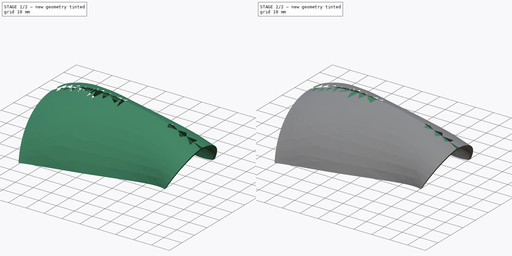
[diagram: build sequence overview — one tinted view per stage of 2, left to right]
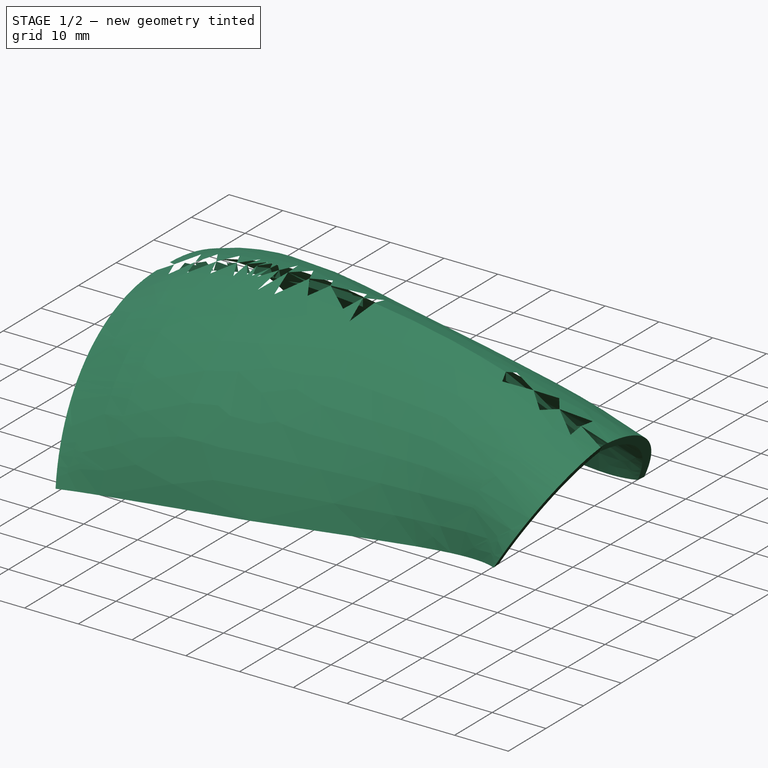
[diagram: stage 1 of 2 — iso view after this stage's code; geometry added in this stage tinted green]
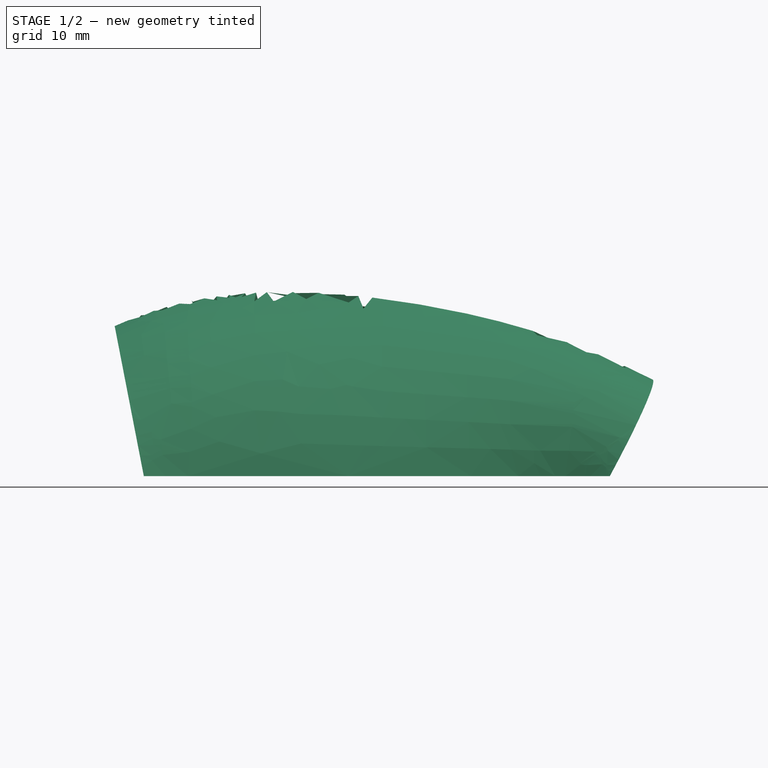
[diagram: stage 1 of 2 — front view after this stage's code; geometry added in this stage tinted green]
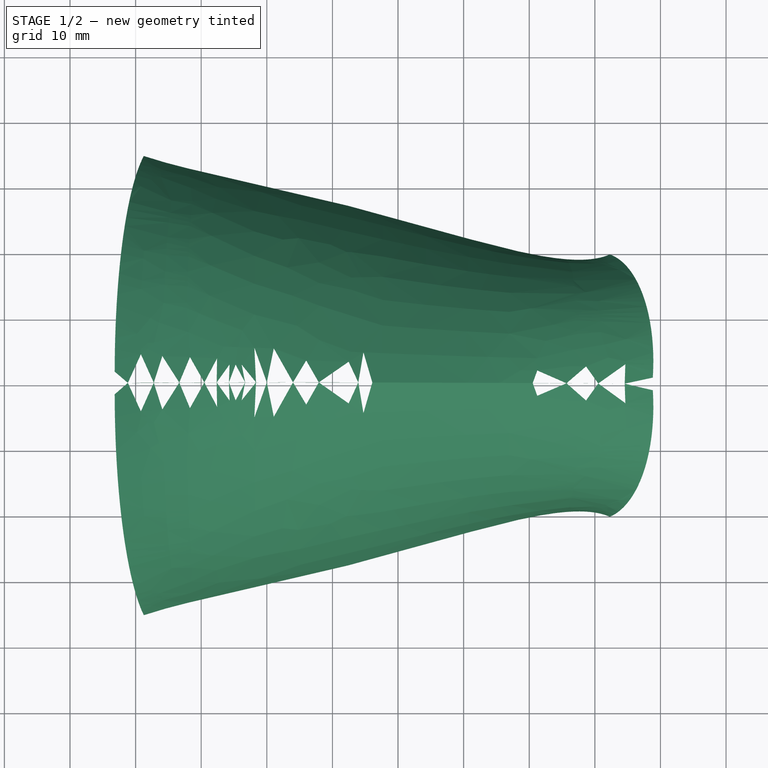
[diagram: stage 1 of 2 — top view after this stage's code; geometry added in this stage tinted green]
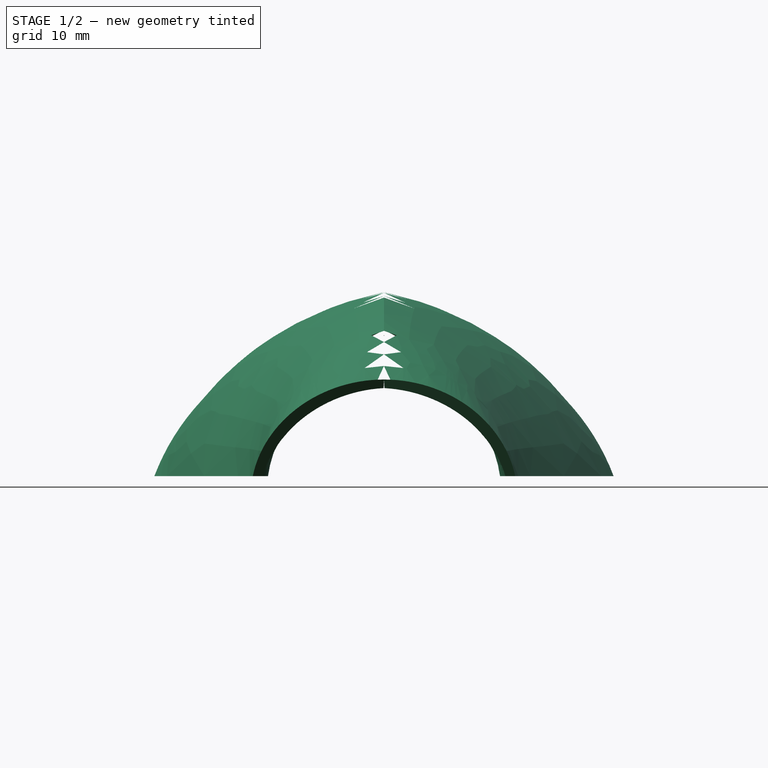
[diagram: stage 1 of 2 — right view after this stage's code; geometry added in this stage tinted green]
FCSTD DOCUMENT  (FreeCAD 0.21RUnknown)
Label: part28
License: All rights reserved
LicenseURL: http://en.wikipedia.org/wiki/All_rights_reserved
objects: Sketcher::SketchObject×20, Part::Loft×1, Part::Mirroring×1, PartDesign::AdditiveLoft×1, PartDesign::Mirrored×1, PartDesign::Body×1
note: 26 computed .brp shape members not serialized (recipe doc carries the construction recipe); baked Part::Feature solids carry a one-line shape summary decoded from their .brp

FEATURE [Sketcher::SketchObject] Sketch012  label="PlacementSketch001"
  FullyConstrained = false
  sketch-geometry (3):
    g0: GeomPoint X=-10 Y=0 Z=0
    g1: GeomPoint X=16.0819 Y=0 Z=0
    g2: GeomPoint X=40.5315 Y=0 Z=0
  constraints (4):
    c: PointOnObject(g0,g-1)
    c: PointOnObject(g1,g-1)
    c: PointOnObject(g2,g-1)
    c: DistanceX(g0,g-1) = 10
FEATURE [Sketcher::SketchObject] Sketch010  label="FootPrint001"
  ExternalGeometry = -> [Sketch012]
  FullyConstrained = false
  sketch-geometry (3):
    g0: LineSegment StartX=-18.7484 StartY=35 StartZ=0 EndX=42.2815 EndY=20 EndZ=0
    g1: GeomPoint X=0 Y=30.392 Z=0
    g2: GeomPoint X=16.0819 Y=26.4394 Z=0
  constraints (6):
    c: DistanceY(g-1,g0) = 20
    c: DistanceY(g-1,g0) = 35
    c: PointOnObject(g1,g0)
    c: PointOnObject(g2,g0)
    c: Vertical(g2,g-4)
    c: Vertical(g1,g-1)
FEATURE [Sketcher::SketchObject] Sketch011
  ExternalGeometry = -> [Sketch012,Sketch010]
  FullyConstrained = false
  sketch-geometry (1):
    g0: LineSegment StartX=-18.7484 StartY=-25.3388 StartZ=0 EndX=-18.7484 EndY=35 EndZ=0
  constraints (2):
    c: Vertical(g0)
    c: Coincident(g0,g-4)
FEATURE [Sketcher::SketchObject] Sketch013  label="TopCurve001"
  ExternalGeometry = -> [Sketch012]
  FullyConstrained = false
  Placement = pos=(0,0,0) rot=(1,0,0;1.5708rad)
  sketch-geometry (25):
    g0: Circle CenterX=-23.1839 CenterY=22.8352 CenterZ=0 NormalX=0 NormalY=0 NormalZ=1 AngleXU=0 Radius=1
    g1: Circle CenterX=-13.1477 CenterY=28.5719 CenterZ=0 NormalX=0 NormalY=0 NormalZ=1 AngleXU=0 Radius=1
    g2: Circle CenterX=0 CenterY=28.0417 CenterZ=0 NormalX=0 NormalY=0 NormalZ=1 AngleXU=0 Radius=1
    g3: BSplineCurve PolesCount=3 KnotsCount=2 Degree=2 IsPeriodic=0
    g4: GeomPoint X=-23.1839 Y=22.8352 Z=0
    g5: GeomPoint X=0 Y=28.0417 Z=0
    g6: Circle CenterX=0 CenterY=28.0417 CenterZ=0 NormalX=0 NormalY=0 NormalZ=1 AngleXU=0 Radius=1
    g7: Circle CenterX=8.70534 CenterY=27.9808 CenterZ=0 NormalX=0 NormalY=0 NormalZ=1 AngleXU=0 Radius=1
    g8: Circle CenterX=16.0819 CenterY=27.2117 CenterZ=0 NormalX=0 NormalY=0 NormalZ=1 AngleXU=0 Radius=1
    g9: BSplineCurve PolesCount=3 KnotsCount=2 Degree=2 IsPeriodic=0
    g10: GeomPoint X=0 Y=28.0417 Z=0
    g11: GeomPoint X=16.0819 Y=27.2117 Z=0
    g12: Circle CenterX=16.0819 CenterY=27.2117 CenterZ=0 NormalX=0 NormalY=0 NormalZ=1 AngleXU=0 Radius=1
    g13: Circle CenterX=29.3371 CenterY=25.4106 CenterZ=0 NormalX=0 NormalY=0 NormalZ=1 AngleXU=0 Radius=1
    g14: Circle CenterX=40.5315 CenterY=22.1414 CenterZ=0 NormalX=0 NormalY=0 NormalZ=1 AngleXU=0 Radius=1
    g15: BSplineCurve PolesCount=3 KnotsCount=2 Degree=2 IsPeriodic=0
    g16: GeomPoint X=16.0819 Y=27.2117 Z=0
    g17: GeomPoint X=40.5315 Y=22.1414 Z=0
    g18: Circle CenterX=40.5315 CenterY=22.1414 CenterZ=0 NormalX=0 NormalY=0 NormalZ=1 AngleXU=0 Radius=1
    g19: Circle CenterX=50.5754 CenterY=18.7571 CenterZ=0 NormalX=0 NormalY=0 NormalZ=1 AngleXU=0 Radius=1
    g20: Circle CenterX=58.7627 CenterY=14.7211 CenterZ=0 NormalX=0 NormalY=0 NormalZ=1 AngleXU=0 Radius=1
    g21: BSplineCurve PolesCount=3 KnotsCount=2 Degree=2 IsPeriodic=0
    g22: GeomPoint X=40.5315 Y=22.1414 Z=0
    g23: GeomPoint X=58.7627 Y=14.7211 Z=0
    g24: LineSegment StartX=-10 StartY=0 StartZ=0 EndX=-23.1839 EndY=22.8352 EndZ=0
  constraints (41):
    c: Weight(g0) = 1
    c: Equal(g0,g1)
    c: Equal(g0,g2)
    c: InternalAlignment(g0,g3)
    c: InternalAlignment(g1,g3)
    c: InternalAlignment(g2,g3)
    c: InternalAlignment(g4,g3)
    c: InternalAlignment(g5,g3)
    c: Vertical(g2,g-1)
    c: Weight(g6) = 1
    c: Coincident(g9,g2)
    c: Equal(g6,g7)
    c: Equal(g6,g8)
    c: InternalAlignment(g6,g9)
    c: InternalAlignment(g7,g9)
    c: InternalAlignment(g8,g9)
    c: InternalAlignment(g10,g9)
    c: InternalAlignment(g11,g9)
    c: Vertical(g8,g-4)
    c: Weight(g12) = 1
    c: Equal(g12,g13)
    c: Equal(g12,g14)
    c: InternalAlignment(g12,g15)
    c: InternalAlignment(g13,g15)
    c: InternalAlignment(g14,g15)
    c: InternalAlignment(g16,g15)
    c: InternalAlignment(g17,g15)
    c: Vertical(g14,g-5)
    c: Weight(g18) = 1
    c: Equal(g18,g19)
    c: Equal(g18,g20)
    c: InternalAlignment(g18,g21)
    c: InternalAlignment(g19,g21)
    c: InternalAlignment(g20,g21)
    c: InternalAlignment(g22,g21)
    c: InternalAlignment(g23,g21)
    c: Coincident(g24,g-3)
    c: Coincident(g24,g0)
    c: Angle(g-1,g24) = 2.0944
    c: Coincident(g9,g15)
    c: Coincident(g15,g21)
FEATURE [Sketcher::SketchObject] Sketch014
  ExternalGeometry = -> [Sketch012,Sketch010]
  FullyConstrained = true
  Placement = pos=(10,0,0) rot=(0,0,1;0rad)
  sketch-geometry (1):
    g0: LineSegment StartX=42.2815 StartY=20 StartZ=0 EndX=38.7816 EndY=-20 EndZ=0
  constraints (2):
    c: Symmetric(g0,g0,g-3)
    c: Coincident(g-4,g0)
FEATURE [Sketcher::SketchObject] Sketch016  label="Profile006"
  ExternalGeometry = -> [Sketch010,Sketch013]
  FullyConstrained = false
  MapMode = 1
  Placement = pos=(40.5315,0,0) rot=(0.57735,-0.57735,-0.57735;2.0944rad)
  Support = -> [Sketch012]
  sketch-geometry (4):
    g0: ArcOfCircle CenterX=5.10984 CenterY=-2.57774 CenterZ=0 NormalX=0 NormalY=0 NormalZ=1 AngleXU=0 Radius=25.2418 StartAngle=1.77464 EndAngle=3.03929
    g1: ArcOfCircle CenterX=6.46024 CenterY=-3.75966 CenterZ=0 NormalX=0 NormalY=0 NormalZ=1 AngleXU=0 Radius=25.2418 StartAngle=1.82961 EndAngle=2.99209
    g2: LineSegment StartX=-20 StartY=-2.2e-15 StartZ=0 EndX=-18.5 EndY=-4e-15 EndZ=0
    g3: LineSegment StartX=5.3e-15 StartY=22.1414 StartZ=0 EndX=-9e-16 EndY=20.6414 EndZ=0
  constraints (11):
    c: Coincident(g0,g-4)
    c: PointOnObject(g1,g-1)
    c: PointOnObject(g1,g-2)
    c: Coincident(g2,g0)
    c: Coincident(g2,g1)
    c: Coincident(g3,g0)
    c: Coincident(g3,g1)
    c: DistanceX(g2,g2) = 1.5
    c: Equal(g1,g0)
    c: Equal(g2,g3)
    c: Coincident(g-3,g0)
FEATURE [Sketcher::SketchObject] Sketch015  label="Profile005"
  ExternalGeometry = -> [Sketch013,Sketch016,Sketch014]
  FullyConstrained = false
  MapMode = 13
  Placement = pos=(53.2753,-9e-16,4.90703) rot=(0.421088,-0.45954,-0.78199;1.89809rad)
  Support = -> [Sketch014,Sketch013]
  sketch-geometry (5):
    g0: ArcOfCircle CenterX=-0.478305 CenterY=-8.31178 CenterZ=0 NormalX=0 NormalY=0 NormalZ=1 AngleXU=0 Radius=19.5456 StartAngle=1.5708 EndAngle=3.00328
    g1: ArcOfCircle CenterX=0.761516 CenterY=-9.77242 CenterZ=0 NormalX=0 NormalY=0 NormalZ=1 AngleXU=0 Radius=19.5456 StartAngle=1.63427 EndAngle=2.92735
    g2: LineSegment StartX=-0.478305 StartY=9.73384 StartZ=0 EndX=-0.478305 EndY=11.2338 EndZ=0
    g3: LineSegment StartX=-19.8373 StartY=-5.61692 StartZ=0 EndX=-18.3373 EndY=-5.61692 EndZ=0
    g4: LineSegment StartX=-6.10121 StartY=11.2338 StartZ=0 EndX=5.30026 EndY=11.2338 EndZ=0
  constraints (13):
    c: Coincident(g2,g-3)
    c: Coincident(g3,g0)
    c: Coincident(g3,g1)
    c: Vertical(g2)
    c: Coincident(g2,g1)
    c: Horizontal(g3)
    c: DistanceX(g3,g3) = 1.5
    c: Equal(g3,g2)
    c: Equal(g0,g1)
    c: Coincident(g0,g2)
    c: Horizontal(g4)
    c: Tangent(g0,g4) = 1.5708
    c: Coincident(g0,g-5)
FEATURE [Sketcher::SketchObject] Sketch017  label="Profile007"
  ExternalGeometry = -> [Sketch010,Sketch013]
  FullyConstrained = false
  MapMode = 1
  Placement = pos=(16.0819,0,0) rot=(0.57735,-0.57735,-0.57735;2.0944rad)
  Support = -> [Sketch012]
  sketch-geometry (4):
    g0: ArcOfCircle CenterX=13.0221 CenterY=-11.8911 CenterZ=0 NormalX=0 NormalY=0 NormalZ=1 AngleXU=0 Radius=41.2141 StartAngle=1.89227 EndAngle=2.84891
    g1: ArcOfCircle CenterX=14.1747 CenterY=-12.9882 CenterZ=0 NormalX=0 NormalY=0 NormalZ=1 AngleXU=0 Radius=41.2141 StartAngle=1.92189 EndAngle=2.82099
    g2: LineSegment StartX=-26.4394 StartY=-1.8e-15 StartZ=0 EndX=-24.9394 EndY=0 EndZ=0
    g3: LineSegment StartX=5.3e-15 StartY=27.2117 StartZ=0 EndX=5.3e-15 EndY=25.7117 EndZ=0
  constraints (11):
    c: Coincident(g0,g-3)
    c: Coincident(g0,g-4)
    c: PointOnObject(g1,g-1)
    c: Coincident(g2,g0)
    c: Coincident(g2,g1)
    c: Coincident(g3,g0)
    c: Coincident(g3,g1)
    c: Vertical(g3)
    c: DistanceX(g2,g2) = 1.5
    c: Equal(g2,g3)
    c: Equal(g1,g0)
FEATURE [Sketcher::SketchObject] Sketch018  label="Profile008"
  ExternalGeometry = -> [Sketch013,Sketch010]
  FullyConstrained = false
  Placement = pos=(0,0,0) rot=(0.57735,-0.57735,-0.57735;2.0944rad)
  sketch-geometry (4):
    g0: ArcOfCircle CenterX=7.62631 CenterY=-10.7143 CenterZ=0 NormalX=0 NormalY=0 NormalZ=1 AngleXU=0 Radius=39.4992 StartAngle=1.76509 EndAngle=2.8669
    g1: ArcOfCircle CenterX=8.7477 CenterY=-11.9767 CenterZ=0 NormalX=0 NormalY=0 NormalZ=1 AngleXU=0 Radius=39.4992 StartAngle=1.79411 EndAngle=2.83353
    g2: LineSegment StartX=8e-15 StartY=28.0417 StartZ=0 EndX=8e-15 EndY=26.5417 EndZ=0
    g3: LineSegment StartX=-30.392 StartY=5.3e-15 StartZ=0 EndX=-28.892 EndY=1.8e-15 EndZ=0
  constraints (11):
    c: Coincident(g0,g-3)
    c: Coincident(g0,g-4)
    c: PointOnObject(g1,g-1)
    c: Coincident(g2,g0)
    c: Vertical(g2)
    c: Coincident(g3,g0)
    c: Coincident(g1,g3)
    c: Coincident(g2,g1)
    c: Equal(g1,g0)
    c: DistanceX(g3,g3) = 1.5
    c: Equal(g3,g2)
FEATURE [Sketcher::SketchObject] Sketch019  label="Profile009"
  ExternalGeometry = -> [Sketch010,Sketch013]
  FullyConstrained = false
  MapMode = 13
  Placement = pos=(-20.2269,3.22039,7.61173) rot=(0.536736,0.536736,0.651022;1.98741rad)
  Support = -> [Sketch011,Sketch013]
  sketch-geometry (4):
    g0: ArcOfCircle CenterX=-1.72306 CenterY=-20.2007 CenterZ=0 NormalX=0 NormalY=0 NormalZ=1 AngleXU=0 Radius=35.74 StartAngle=0.35571 EndAngle=1.6127
    g1: ArcOfCircle CenterX=-2.61587 CenterY=-21.7267 CenterZ=0 NormalX=0 NormalY=0 NormalZ=1 AngleXU=0 Radius=35.74 StartAngle=0.401667 EndAngle=1.58804
    g2: LineSegment StartX=-3.22039 StartY=15.508 StartZ=0 EndX=-3.23201 EndY=14.008 EndZ=0
    g3: LineSegment StartX=30.2796 StartY=-7.75399 StartZ=0 EndX=31.7796 EndY=-7.75399 EndZ=0
  constraints (10):
    c: Equal(g0,g1)
    c: Coincident(g0,g-5)
    c: Coincident(g0,g-4)
    c: Coincident(g2,g0)
    c: Coincident(g1,g2)
    c: Coincident(g3,g1)
    c: Coincident(g3,g0)
    c: Horizontal(g3)
    c: DistanceX(g3,g3) = 1.5
    c: Equal(g2,g3)
FEATURE [PartDesign::AdditiveLoft] AdditiveLoft
  Closed = false
  Placement = pos=(-20.2269,3.22039,7.61173) rot=(0.536736,0.536736,0.651022;1.98741rad)
  Profile = -> Sketch019
  Ruled = false
  Sections = -> [Sketch018,Sketch017,Sketch016,Sketch015]
FEATURE [PartDesign::Mirrored] Mirrored
  BaseFeature = -> AdditiveLoft
  MirrorPlane = -> XZ_Plane
  Originals = -> [AdditiveLoft]
  Placement = pos=(-20.2269,3.22039,7.61173) rot=(0.536736,0.536736,0.651022;1.98741rad)
FEATURE [PartDesign::Body] Body
  Group = -> [Sketch010,Sketch011,Sketch012,Sketch013,Sketch014,Sketch015,Sketch016,Sketch017,Sketch018,Sketch019,AdditiveLoft,Mirrored]
  Origin = -> Origin
  Tip = -> Mirrored
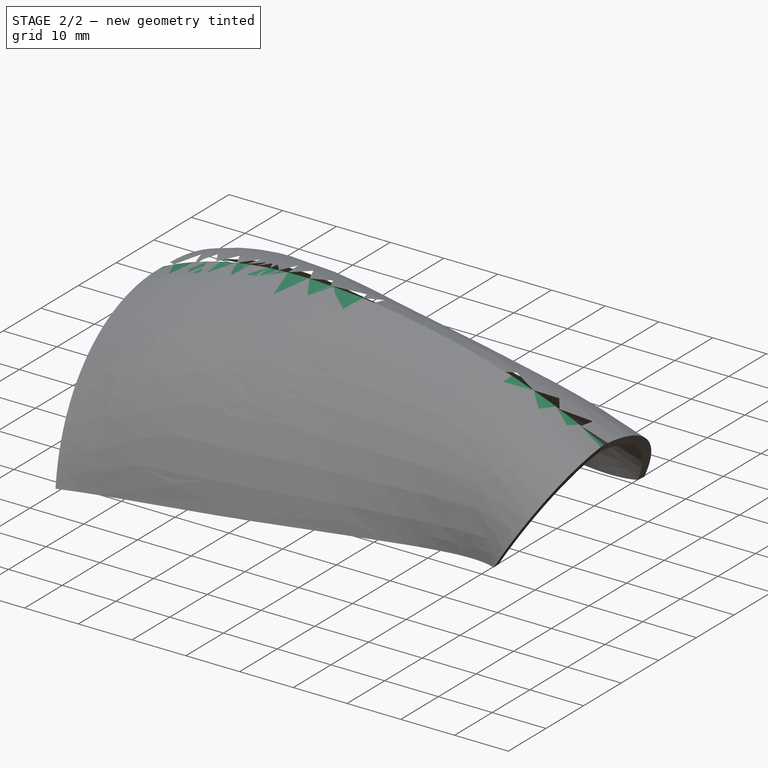
[diagram: stage 2 of 2 — iso view after this stage's code; geometry added in this stage tinted green]
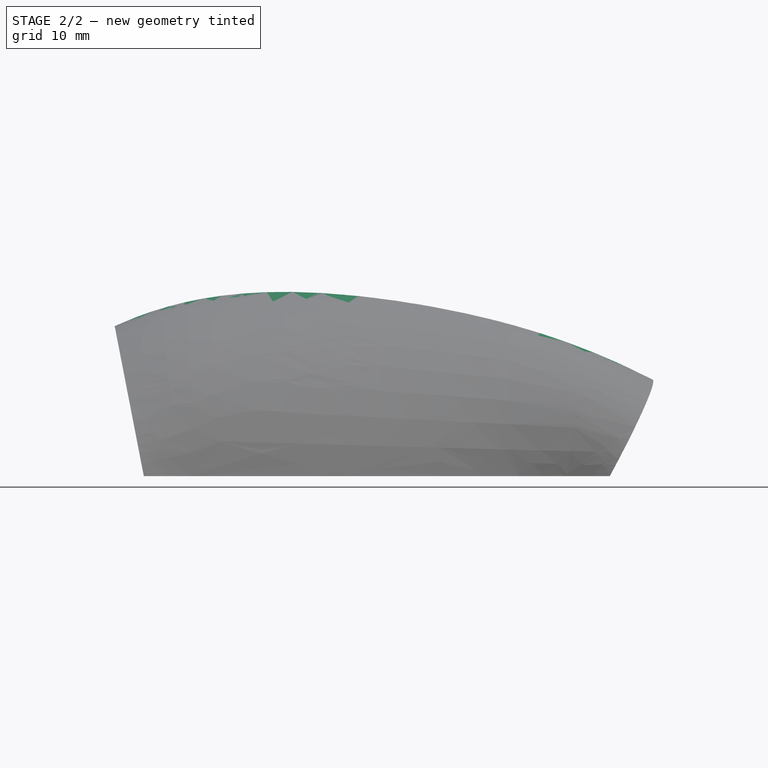
[diagram: stage 2 of 2 — front view after this stage's code; geometry added in this stage tinted green]
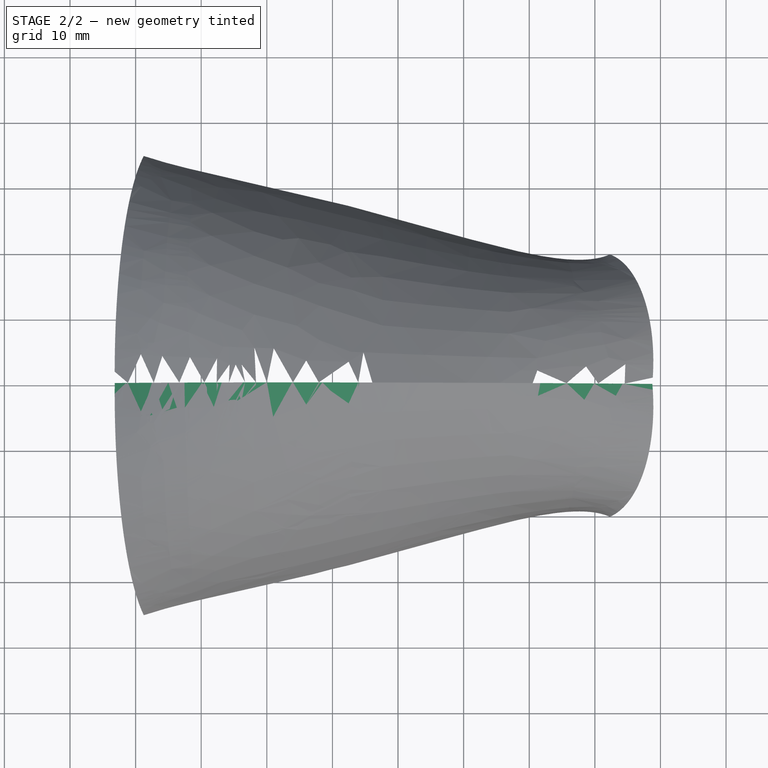
[diagram: stage 2 of 2 — top view after this stage's code; geometry added in this stage tinted green]
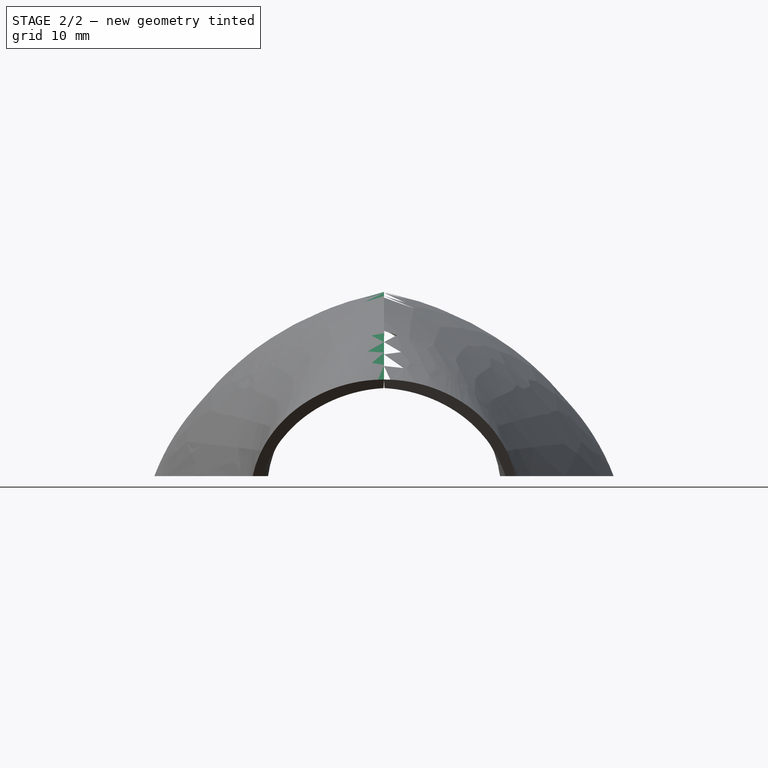
[diagram: stage 2 of 2 — right view after this stage's code; geometry added in this stage tinted green]
FEATURE [Sketcher::SketchObject] Sketch001  label="PlacementSketch"
  FullyConstrained = false
  sketch-geometry (3):
    g0: GeomPoint X=-10 Y=0 Z=0
    g1: GeomPoint X=16.0819 Y=0 Z=0
    g2: GeomPoint X=40.5315 Y=0 Z=0
  constraints (4):
    c: PointOnObject(g0,g-1)
    c: PointOnObject(g1,g-1)
    c: PointOnObject(g2,g-1)
    c: DistanceX(g0,g-1) = 10
FEATURE [Sketcher::SketchObject] Sketch  label="FootPrint"
  ExternalGeometry = -> [Sketch001]
  FullyConstrained = false
  sketch-geometry (3):
    g0: LineSegment StartX=-18.7484 StartY=35 StartZ=0 EndX=42.2815 EndY=20 EndZ=0
    g1: GeomPoint X=0 Y=30.392 Z=0
    g2: GeomPoint X=16.0819 Y=26.4394 Z=0
  constraints (6):
    c: DistanceY(g-1,g0) = 20
    c: DistanceY(g-1,g0) = 35
    c: PointOnObject(g1,g0)
    c: PointOnObject(g2,g0)
    c: Vertical(g2,g-4)
    c: Vertical(g1,g-1)
FEATURE [Sketcher::SketchObject] Sketch002  label="TopCurve"
  ExternalGeometry = -> [Sketch001]
  FullyConstrained = false
  Placement = pos=(0,0,0) rot=(1,0,0;1.5708rad)
  sketch-geometry (25):
    g0: Circle CenterX=-23.1839 CenterY=22.8352 CenterZ=0 NormalX=0 NormalY=0 NormalZ=1 AngleXU=0 Radius=1
    g1: Circle CenterX=-13.1477 CenterY=28.5719 CenterZ=0 NormalX=0 NormalY=0 NormalZ=1 AngleXU=0 Radius=1
    g2: Circle CenterX=0 CenterY=28.0417 CenterZ=0 NormalX=0 NormalY=0 NormalZ=1 AngleXU=0 Radius=1
    g3: BSplineCurve PolesCount=3 KnotsCount=2 Degree=2 IsPeriodic=0
    g4: GeomPoint X=-23.1839 Y=22.8352 Z=0
    g5: GeomPoint X=0 Y=28.0417 Z=0
    g6: Circle CenterX=0 CenterY=28.0417 CenterZ=0 NormalX=0 NormalY=0 NormalZ=1 AngleXU=0 Radius=1
    g7: Circle CenterX=8.70534 CenterY=27.9808 CenterZ=0 NormalX=0 NormalY=0 NormalZ=1 AngleXU=0 Radius=1
    g8: Circle CenterX=16.0819 CenterY=27.2117 CenterZ=0 NormalX=0 NormalY=0 NormalZ=1 AngleXU=0 Radius=1
    g9: BSplineCurve PolesCount=3 KnotsCount=2 Degree=2 IsPeriodic=0
    g10: GeomPoint X=0 Y=28.0417 Z=0
    g11: GeomPoint X=16.0819 Y=27.2117 Z=0
    g12: Circle CenterX=16.0819 CenterY=27.2117 CenterZ=0 NormalX=0 NormalY=0 NormalZ=1 AngleXU=0 Radius=1
    g13: Circle CenterX=29.3371 CenterY=25.4106 CenterZ=0 NormalX=0 NormalY=0 NormalZ=1 AngleXU=0 Radius=1
    g14: Circle CenterX=40.5315 CenterY=22.1414 CenterZ=0 NormalX=0 NormalY=0 NormalZ=1 AngleXU=0 Radius=1
    g15: BSplineCurve PolesCount=3 KnotsCount=2 Degree=2 IsPeriodic=0
    g16: GeomPoint X=16.0819 Y=27.2117 Z=0
    g17: GeomPoint X=40.5315 Y=22.1414 Z=0
    g18: Circle CenterX=40.5315 CenterY=22.1414 CenterZ=0 NormalX=0 NormalY=0 NormalZ=1 AngleXU=0 Radius=1
    g19: Circle CenterX=50.5754 CenterY=18.7571 CenterZ=0 NormalX=0 NormalY=0 NormalZ=1 AngleXU=0 Radius=1
    g20: Circle CenterX=58.7627 CenterY=14.7211 CenterZ=0 NormalX=0 NormalY=0 NormalZ=1 AngleXU=0 Radius=1
    g21: BSplineCurve PolesCount=3 KnotsCount=2 Degree=2 IsPeriodic=0
    g22: GeomPoint X=40.5315 Y=22.1414 Z=0
    g23: GeomPoint X=58.7627 Y=14.7211 Z=0
    g24: LineSegment StartX=-10 StartY=0 StartZ=0 EndX=-23.1839 EndY=22.8352 EndZ=0
  constraints (41):
    c: Weight(g0) = 1
    c: Equal(g0,g1)
    c: Equal(g0,g2)
    c: InternalAlignment(g0,g3)
    c: InternalAlignment(g1,g3)
    c: InternalAlignment(g2,g3)
    c: InternalAlignment(g4,g3)
    c: InternalAlignment(g5,g3)
    c: Vertical(g2,g-1)
    c: Weight(g6) = 1
    c: Coincident(g9,g2)
    c: Equal(g6,g7)
    c: Equal(g6,g8)
    c: InternalAlignment(g6,g9)
    c: InternalAlignment(g7,g9)
    c: InternalAlignment(g8,g9)
    c: InternalAlignment(g10,g9)
    c: InternalAlignment(g11,g9)
    c: Vertical(g8,g-4)
    c: Weight(g12) = 1
    c: Equal(g12,g13)
    c: Equal(g12,g14)
    c: InternalAlignment(g12,g15)
    c: InternalAlignment(g13,g15)
    c: InternalAlignment(g14,g15)
    c: InternalAlignment(g16,g15)
    c: InternalAlignment(g17,g15)
    c: Vertical(g14,g-5)
    c: Weight(g18) = 1
    c: Equal(g18,g19)
    c: Equal(g18,g20)
    c: InternalAlignment(g18,g21)
    c: InternalAlignment(g19,g21)
    c: InternalAlignment(g20,g21)
    c: InternalAlignment(g22,g21)
    c: InternalAlignment(g23,g21)
    c: Coincident(g24,g-3)
    c: Coincident(g24,g0)
    c: Angle(g-1,g24) = 2.0944
    c: Coincident(g9,g15)
    c: Coincident(g15,g21)
FEATURE [Sketcher::SketchObject] Sketch003  label="Profile1"
  ExternalGeometry = -> [Sketch002,Sketch]
  FullyConstrained = false
  Placement = pos=(0,0,0) rot=(-0.57735,0.57735,0.57735;4.18879rad)
  sketch-geometry (4):
    g0: ArcOfCircle CenterX=7.62631 CenterY=-10.7143 CenterZ=0 NormalX=0 NormalY=0 NormalZ=1 AngleXU=0 Radius=39.4992 StartAngle=1.76509 EndAngle=2.8669
    g1: ArcOfCircle CenterX=8.7477 CenterY=-11.9767 CenterZ=0 NormalX=0 NormalY=0 NormalZ=1 AngleXU=0 Radius=39.4992 StartAngle=1.79411 EndAngle=2.83353
    g2: LineSegment StartX=8e-15 StartY=28.0417 StartZ=0 EndX=8e-15 EndY=26.5417 EndZ=0
    g3: LineSegment StartX=-30.392 StartY=5.3e-15 StartZ=0 EndX=-28.892 EndY=1.8e-15 EndZ=0
  constraints (11):
    c: Coincident(g0,g-3)
    c: Coincident(g0,g-4)
    c: PointOnObject(g1,g-1)
    c: Coincident(g2,g0)
    c: Vertical(g2)
    c: Coincident(g3,g0)
    c: Coincident(g1,g3)
    c: Coincident(g2,g1)
    c: Equal(g1,g0)
    c: DistanceX(g3,g3) = 1.5
    c: Equal(g3,g2)
FEATURE [Sketcher::SketchObject] Sketch004  label="Profile2"
  ExternalGeometry = -> [Sketch,Sketch002]
  FullyConstrained = false
  MapMode = 1
  Placement = pos=(16.0819,0,0) rot=(0.57735,-0.57735,-0.57735;2.0944rad)
  Support = -> [Sketch001]
  sketch-geometry (4):
    g0: ArcOfCircle CenterX=13.0221 CenterY=-11.8911 CenterZ=0 NormalX=0 NormalY=0 NormalZ=1 AngleXU=0 Radius=41.2141 StartAngle=1.89227 EndAngle=2.84891
    g1: ArcOfCircle CenterX=14.1747 CenterY=-12.9882 CenterZ=0 NormalX=0 NormalY=0 NormalZ=1 AngleXU=0 Radius=41.2141 StartAngle=1.92189 EndAngle=2.82099
    g2: LineSegment StartX=-26.4394 StartY=-1.8e-15 StartZ=0 EndX=-24.9394 EndY=0 EndZ=0
    g3: LineSegment StartX=5.3e-15 StartY=27.2117 StartZ=0 EndX=5.3e-15 EndY=25.7117 EndZ=0
  constraints (11):
    c: Coincident(g0,g-3)
    c: Coincident(g0,g-4)
    c: PointOnObject(g1,g-1)
    c: Coincident(g2,g0)
    c: Coincident(g2,g1)
    c: Coincident(g3,g0)
    c: Coincident(g3,g1)
    c: Vertical(g3)
    c: DistanceX(g2,g2) = 1.5
    c: Equal(g2,g3)
    c: Equal(g1,g0)
FEATURE [Sketcher::SketchObject] Sketch005  label="Profile3"
  ExternalGeometry = -> [Sketch,Sketch002]
  FullyConstrained = false
  MapMode = 1
  Placement = pos=(40.5315,0,0) rot=(0.57735,-0.57735,-0.57735;2.0944rad)
  Support = -> [Sketch001]
  sketch-geometry (4):
    g0: ArcOfCircle CenterX=5.10984 CenterY=-2.57774 CenterZ=0 NormalX=0 NormalY=0 NormalZ=1 AngleXU=0 Radius=25.2418 StartAngle=1.77464 EndAngle=3.03929
    g1: ArcOfCircle CenterX=6.46024 CenterY=-3.75966 CenterZ=0 NormalX=0 NormalY=0 NormalZ=1 AngleXU=0 Radius=25.2418 StartAngle=1.82961 EndAngle=2.99209
    g2: LineSegment StartX=-20 StartY=-2.2e-15 StartZ=0 EndX=-18.5 EndY=-4e-15 EndZ=0
    g3: LineSegment StartX=5.3e-15 StartY=22.1414 StartZ=0 EndX=-9e-16 EndY=20.6414 EndZ=0
  constraints (11):
    c: Coincident(g0,g-4)
    c: PointOnObject(g1,g-1)
    c: PointOnObject(g1,g-2)
    c: Coincident(g2,g0)
    c: Coincident(g2,g1)
    c: Coincident(g3,g0)
    c: Coincident(g3,g1)
    c: DistanceX(g2,g2) = 1.5
    c: Equal(g1,g0)
    c: Equal(g2,g3)
    c: Coincident(g-3,g0)
FEATURE [Sketcher::SketchObject] Sketch006
  ExternalGeometry = -> [Sketch001,Sketch]
  FullyConstrained = false
  sketch-geometry (1):
    g0: LineSegment StartX=-18.7484 StartY=-25.3388 StartZ=0 EndX=-18.7484 EndY=35 EndZ=0
  constraints (2):
    c: Vertical(g0)
    c: Coincident(g0,g-4)
FEATURE [Sketcher::SketchObject] Sketch007  label="Profile004"
  ExternalGeometry = -> [Sketch,Sketch002]
  FullyConstrained = false
  MapMode = 13
  Placement = pos=(-20.2269,3.22038,7.61173) rot=(0.536736,0.536736,0.651022;1.98741rad)
  Support = -> [Sketch006,Sketch002]
  sketch-geometry (4):
    g0: ArcOfCircle CenterX=-1.72306 CenterY=-20.2007 CenterZ=0 NormalX=0 NormalY=0 NormalZ=1 AngleXU=0 Radius=35.74 StartAngle=0.35571 EndAngle=1.6127
    g1: ArcOfCircle CenterX=-2.61587 CenterY=-21.7267 CenterZ=0 NormalX=0 NormalY=0 NormalZ=1 AngleXU=0 Radius=35.74 StartAngle=0.401667 EndAngle=1.58804
    g2: LineSegment StartX=-3.22039 StartY=15.508 StartZ=0 EndX=-3.23201 EndY=14.008 EndZ=0
    g3: LineSegment StartX=30.2796 StartY=-7.75399 StartZ=0 EndX=31.7796 EndY=-7.75399 EndZ=0
  constraints (10):
    c: Equal(g0,g1)
    c: Coincident(g0,g-5)
    c: Coincident(g0,g-4)
    c: Coincident(g2,g0)
    c: Coincident(g1,g2)
    c: Coincident(g3,g1)
    c: Coincident(g3,g0)
    c: Horizontal(g3)
    c: DistanceX(g3,g3) = 1.5
    c: Equal(g2,g3)
FEATURE [Sketcher::SketchObject] Sketch008
  ExternalGeometry = -> [Sketch001,Sketch]
  FullyConstrained = true
  Placement = pos=(10,0,0) rot=(0,0,1;0rad)
  sketch-geometry (1):
    g0: LineSegment StartX=42.2815 StartY=20 StartZ=0 EndX=38.7816 EndY=-20 EndZ=0
  constraints (2):
    c: Symmetric(g0,g0,g-3)
    c: Coincident(g-4,g0)
FEATURE [Sketcher::SketchObject] Sketch009  label="Profile5"
  ExternalGeometry = -> [Sketch002,Sketch005,Sketch008]
  FullyConstrained = false
  MapMode = 13
  Placement = pos=(53.2753,-9e-16,4.90703) rot=(0.421088,-0.45954,-0.78199;1.89809rad)
  Support = -> [Sketch008,Sketch002]
  sketch-geometry (5):
    g0: ArcOfCircle CenterX=-0.478305 CenterY=-8.31178 CenterZ=0 NormalX=0 NormalY=0 NormalZ=1 AngleXU=0 Radius=19.5456 StartAngle=1.5708 EndAngle=3.00328
    g1: ArcOfCircle CenterX=0.761516 CenterY=-9.77242 CenterZ=0 NormalX=0 NormalY=0 NormalZ=1 AngleXU=0 Radius=19.5456 StartAngle=1.63427 EndAngle=2.92735
    g2: LineSegment StartX=-0.478305 StartY=9.73384 StartZ=0 EndX=-0.478305 EndY=11.2338 EndZ=0
    g3: LineSegment StartX=-19.8373 StartY=-5.61692 StartZ=0 EndX=-18.3373 EndY=-5.61692 EndZ=0
    g4: LineSegment StartX=-6.10121 StartY=11.2338 StartZ=0 EndX=5.30026 EndY=11.2338 EndZ=0
  constraints (13):
    c: Coincident(g2,g-3)
    c: Coincident(g3,g0)
    c: Coincident(g3,g1)
    c: Vertical(g2)
    c: Coincident(g2,g1)
    c: Horizontal(g3)
    c: DistanceX(g3,g3) = 1.5
    c: Equal(g3,g2)
    c: Equal(g0,g1)
    c: Coincident(g0,g2)
    c: Horizontal(g4)
    c: Tangent(g0,g4) = 1.5708
    c: Coincident(g0,g-5)
FEATURE [Part::Loft] Loft
  Closed = false
  MaxDegree = 5
  Ruled = false
  Sections = -> [Sketch009,Sketch005,Sketch004,Sketch003,Sketch007]
  Solid = true
FEATURE [Part::Mirroring] Part__Mirroring  label="Loft (Mirror #1)"
  Base = (0,0,0)
  Normal = (0,1,0)
  Source = -> Loft
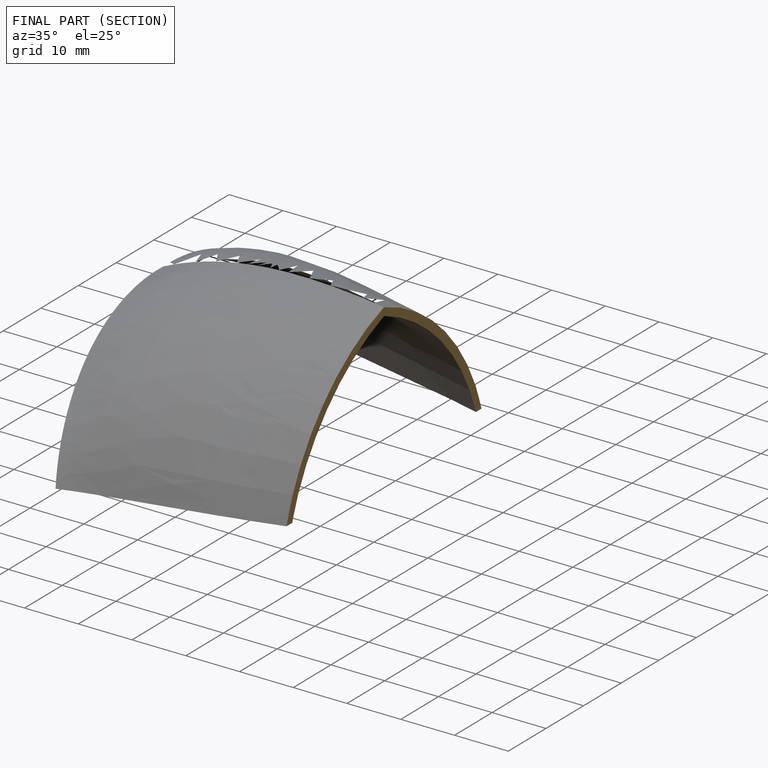
[diagram: finished part — half-section view (interior)]
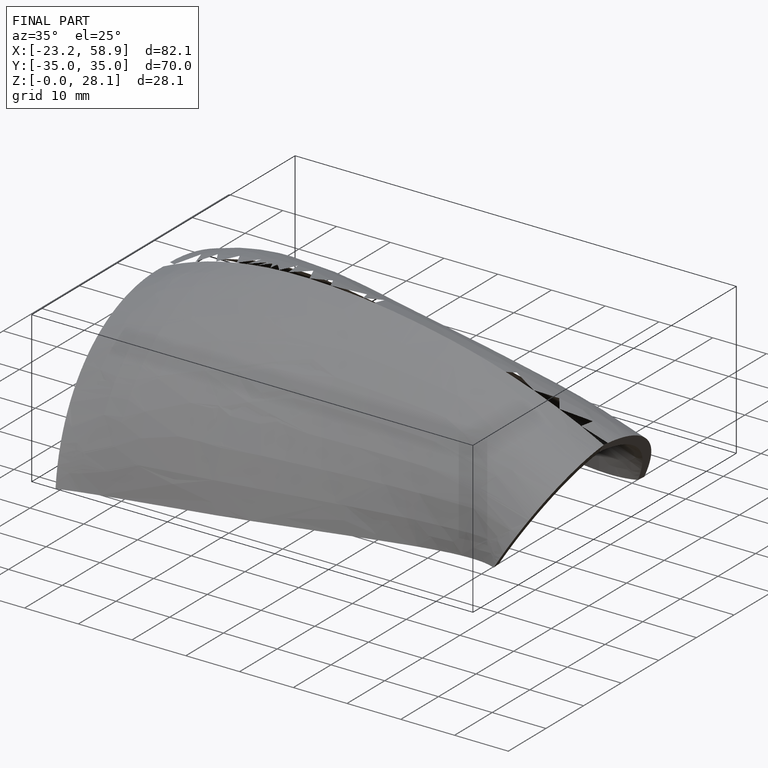
[diagram: finished part — iso view with bounding-box wireframe]
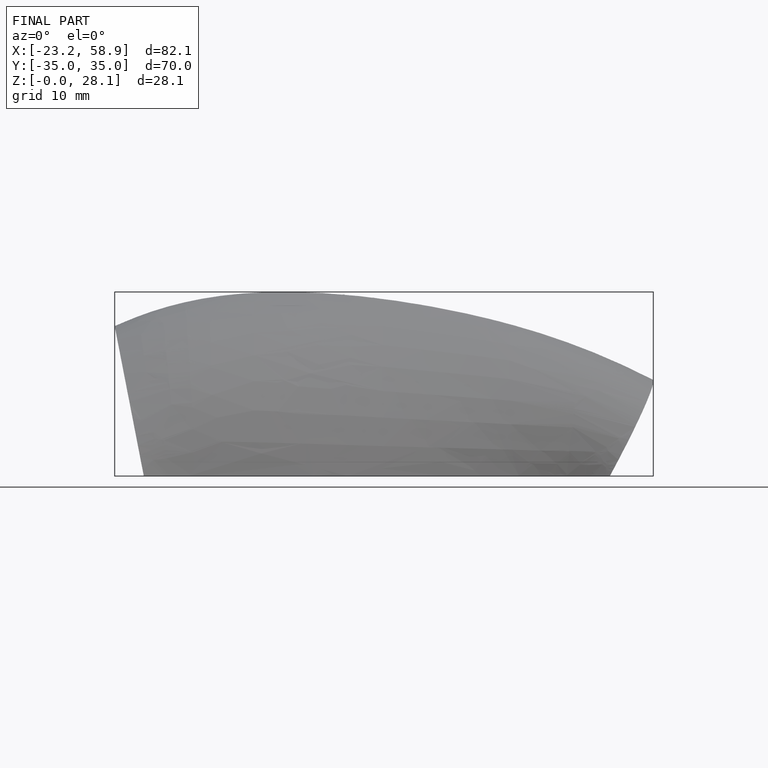
[diagram: finished part — front view with bounding-box wireframe]
